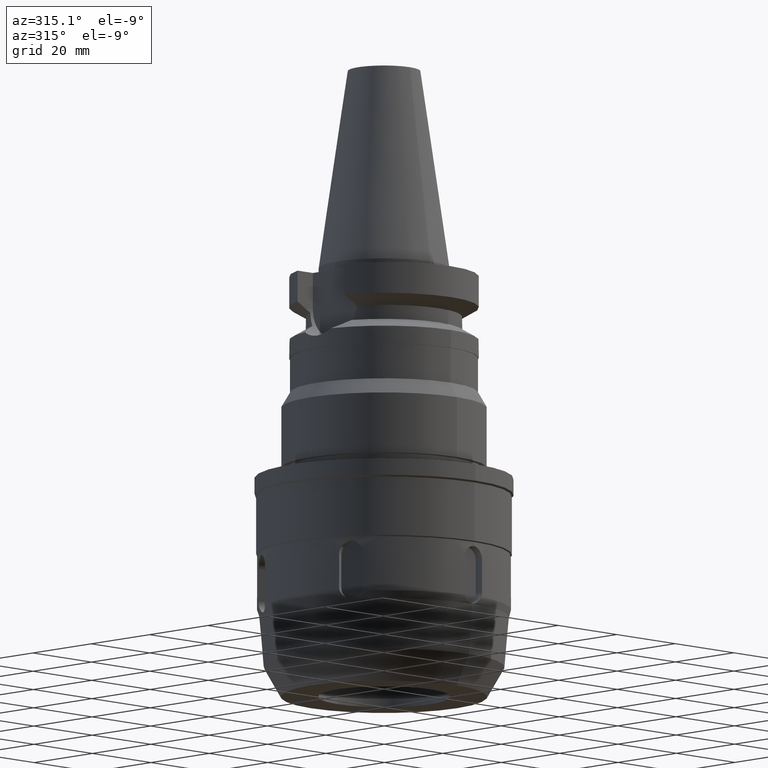
[diagram: clean part render]
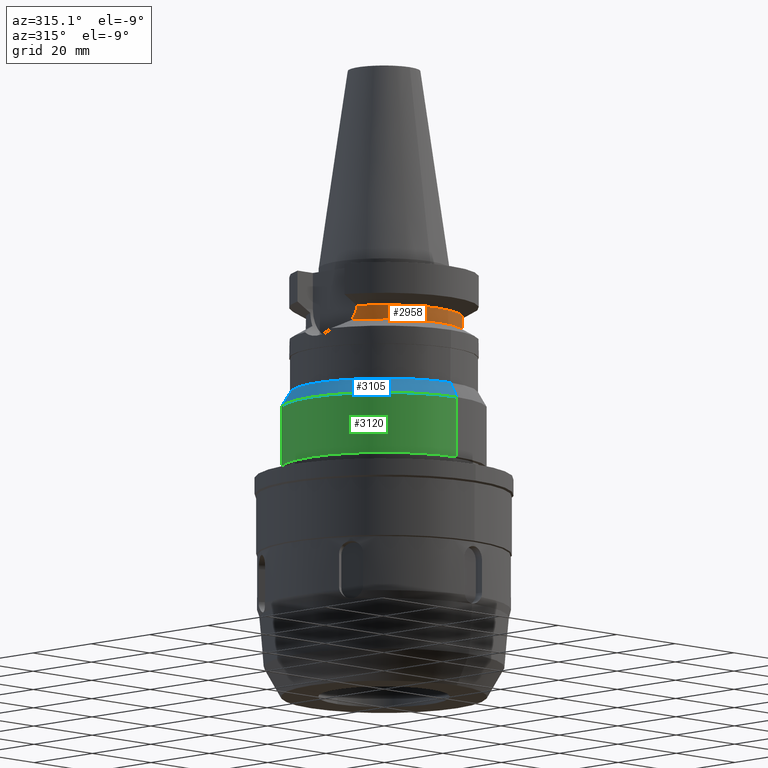
[diagram: same view with three faces highlighted in distinct colors, each labeled with its STEP entity id]
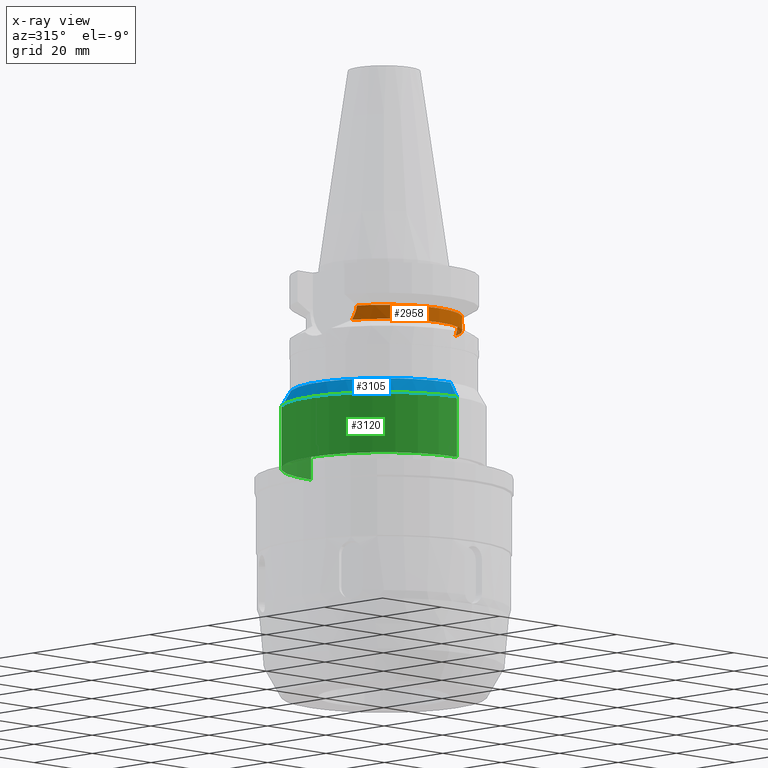
[diagram: x-ray of the same camera — body ghosted, the three highlighted faces saturated]
A machine part, auxiliary view with three faces highlighted in distinct colors.
The next image is the same camera in x-ray (body ghosted, the three faces saturated) — at least one of them is partly hidden behind the body in this view.
Their STEP definitions:

[orange] entity #2958 — the highlighted cylindrical surface (partial cylindrical patch) has radius 19 mm, axis along (0, 0, -1).
#243=CARTESIAN_POINT('',(0.E0,1.093341284897E-14,-1.187660944647E1));
#244=DIRECTION('',(0.E0,0.E0,-1.E0));
#245=DIRECTION('',(9.071218755694E-1,-4.208680349747E-1,0.E0));
#246=AXIS2_PLACEMENT_3D('',#243,#244,#245);
#251=CARTESIAN_POINT('',(0.E0,1.093341284897E-14,-1.187660944647E1));
#252=DIRECTION('',(0.E0,0.E0,-1.E0));
#253=DIRECTION('',(0.E0,-1.E0,0.E0));
#254=AXIS2_PLACEMENT_3D('',#251,#252,#253);
#259=CARTESIAN_POINT('',(-1.723531622871E1,-7.996491146968E0,
-1.187660607766E1));
#435=CARTESIAN_POINT('',(-1.775736593456E1,-6.758398853744E0,
-1.532339055353E1));
#440=CARTESIAN_POINT('',(0.E0,1.022848384030E-14,-1.532339055353E1));
#441=DIRECTION('',(0.E0,0.E0,1.E0));
#442=DIRECTION('',(-9.345982070819E-1,-3.557052028286E-1,0.E0));
#443=AXIS2_PLACEMENT_3D('',#440,#441,#442);
#448=CARTESIAN_POINT('',(0.E0,1.022848384030E-14,-1.532339055353E1));
#449=DIRECTION('',(0.E0,0.E0,1.E0));
#450=DIRECTION('',(0.E0,-1.E0,0.E0));
#451=AXIS2_PLACEMENT_3D('',#448,#449,#450);
#456=CARTESIAN_POINT('',(1.775736593456E1,-6.758398853744E0,-1.532339055353E1));
#482=CARTESIAN_POINT('',(-1.775736593456E1,-6.758398853744E0,
-1.532339055353E1));
#483=CARTESIAN_POINT('',(-1.766906836173E1,-6.990396453429E0,
-1.496487413644E1));
#484=CARTESIAN_POINT('',(-1.750811847336E1,-7.386671879896E0,
-1.422936406736E1));
#485=CARTESIAN_POINT('',(-1.732657549397E1,-7.799288209105E0,
-1.306384797532E1));
#486=CARTESIAN_POINT('',(-1.725677825876E1,-7.950232758741E0,
-1.227581304913E1));
#487=CARTESIAN_POINT('',(-1.723531622871E1,-7.996491146968E0,
-1.187660607766E1));
#492=CARTESIAN_POINT('',(1.723531135315E1,-7.996501749113E0,-1.187660739353E1));
#493=CARTESIAN_POINT('',(1.725676925407E1,-7.950252260646E0,-1.227573583739E1));
#494=CARTESIAN_POINT('',(1.732652358915E1,-7.799414138386E0,-1.306369664010E1));
#495=CARTESIAN_POINT('',(1.750847798992E1,-7.385835046504E0,-1.423136151466E1));
#496=CARTESIAN_POINT('',(1.766925811754E1,-6.989897879221E0,-1.496564460579E1));
#497=CARTESIAN_POINT('',(1.775736593456E1,-6.758398853744E0,-1.532339055353E1));
#2510=VERTEX_POINT('',#456);
#2511=VERTEX_POINT('',#492);
#2524=VERTEX_POINT('',#435);
#2525=CARTESIAN_POINT('',(0.E0,-1.9E1,-1.532339055353E1));
#2526=VERTEX_POINT('',#2525);
#2541=VERTEX_POINT('',#259);
#2542=CARTESIAN_POINT('',(0.E0,-1.9E1,-1.187660944647E1));
#2543=VERTEX_POINT('',#2542);
#2944=CARTESIAN_POINT('',(0.E0,1.911306259429E-14,5.607E1));
#2945=DIRECTION('',(0.E0,0.E0,-1.E0));
#2946=DIRECTION('',(0.E0,-1.E0,0.E0));
#2947=AXIS2_PLACEMENT_3D('',#2944,#2945,#2946);
#2948=CYLINDRICAL_SURFACE('',#2947,1.9E1);
#2949=ORIENTED_EDGE('',*,*,#2920,.T.);
#2950=ORIENTED_EDGE('',*,*,#2780,.F.);
#2951=ORIENTED_EDGE('',*,*,#2778,.F.);
#2953=ORIENTED_EDGE('',*,*,#2952,.T.);
#2954=ORIENTED_EDGE('',*,*,#2933,.F.);
#2955=ORIENTED_EDGE('',*,*,#2931,.F.);
#2956=EDGE_LOOP('',(#2949,#2950,#2951,#2953,#2954,#2955));
#2957=FACE_OUTER_BOUND('',#2956,.F.);
#247=CIRCLE('',#246,1.9E1);
#255=CIRCLE('',#254,1.9E1);
#444=CIRCLE('',#443,1.9E1);
#452=CIRCLE('',#451,1.9E1);
#488=B_SPLINE_CURVE_WITH_KNOTS('',3,(#482,#483,#484,#485,#486,#487),
.UNSPECIFIED.,.F.,.F.,(4,1,1,4),(0.E0,3.333333333333E-1,6.666666666667E-1,1.E0),
.UNSPECIFIED.);
#498=B_SPLINE_CURVE_WITH_KNOTS('',3,(#492,#493,#494,#495,#496,#497),
.UNSPECIFIED.,.F.,.F.,(4,1,1,4),(0.E0,3.333333333333E-1,6.666666666667E-1,1.E0),
.UNSPECIFIED.);
#2778=EDGE_CURVE('',#2511,#2543,#247,.T.);
#2780=EDGE_CURVE('',#2543,#2541,#255,.T.);
#2920=EDGE_CURVE('',#2524,#2541,#488,.T.);
#2931=EDGE_CURVE('',#2524,#2526,#444,.T.);
#2933=EDGE_CURVE('',#2526,#2510,#452,.T.);
#2952=EDGE_CURVE('',#2511,#2510,#498,.T.);
#2958=ADVANCED_FACE('',(#2957),#2948,.T.);

[blue] entity #3105 — the highlighted conical surface has half-angle 30 deg.
#661=DIRECTION('',(0.E0,5.000000000001E-1,-8.660254037844E-1));
#662=VECTOR('',#661,4.399999999999E0);
#663=CARTESIAN_POINT('',(0.E0,2.28E1,-3.05E1));
#664=LINE('',#663,#662);
#684=CARTESIAN_POINT('',(0.E0,0.E0,-3.05E1));
#685=DIRECTION('',(0.E0,0.E0,1.E0));
#686=DIRECTION('',(0.E0,1.E0,0.E0));
#687=AXIS2_PLACEMENT_3D('',#684,#685,#686);
#692=DIRECTION('',(0.E0,-5.000000000001E-1,-8.660254037844E-1));
#693=VECTOR('',#692,4.399999999999E0);
#694=CARTESIAN_POINT('',(0.E0,-2.28E1,-3.05E1));
#695=LINE('',#694,#693);
#699=CARTESIAN_POINT('',(0.E0,0.E0,-3.431051177665E1));
#700=DIRECTION('',(0.E0,0.E0,-1.E0));
#701=DIRECTION('',(0.E0,-1.E0,0.E0));
#702=AXIS2_PLACEMENT_3D('',#699,#700,#701);
#2487=CARTESIAN_POINT('',(0.E0,2.5E1,-3.431051177665E1));
#2488=VERTEX_POINT('',#2487);
#2489=CARTESIAN_POINT('',(0.E0,-2.5E1,-3.431051177665E1));
#2490=VERTEX_POINT('',#2489);
#2491=CARTESIAN_POINT('',(0.E0,2.28E1,-3.05E1));
#2492=VERTEX_POINT('',#2491);
#2493=CARTESIAN_POINT('',(0.E0,-2.28E1,-3.05E1));
#2494=VERTEX_POINT('',#2493);
#3093=CARTESIAN_POINT('',(0.E0,0.E0,-3.240525588833E1));
#3094=DIRECTION('',(0.E0,0.E0,-1.E0));
#3095=DIRECTION('',(0.E0,-1.E0,0.E0));
#3096=AXIS2_PLACEMENT_3D('',#3093,#3094,#3095);
#3097=CONICAL_SURFACE('',#3096,2.39E1,3.E1);
#3098=ORIENTED_EDGE('',*,*,#3083,.F.);
#3099=ORIENTED_EDGE('',*,*,#3060,.T.);
#3100=ORIENTED_EDGE('',*,*,#3087,.T.);
#3102=ORIENTED_EDGE('',*,*,#3101,.T.);
#3103=EDGE_LOOP('',(#3098,#3099,#3100,#3102));
#3104=FACE_OUTER_BOUND('',#3103,.F.);
#688=CIRCLE('',#687,2.28E1);
#703=CIRCLE('',#702,2.5E1);
#3060=EDGE_CURVE('',#2492,#2494,#688,.T.);
#3083=EDGE_CURVE('',#2492,#2488,#664,.T.);
#3087=EDGE_CURVE('',#2494,#2490,#695,.T.);
#3101=EDGE_CURVE('',#2490,#2488,#703,.T.);
#3105=ADVANCED_FACE('',(#3104),#3097,.T.);

[green] entity #3120 — the highlighted cylindrical surface (partial cylindrical patch) has radius 25 mm, axis along (0, 0, -1).
#699=CARTESIAN_POINT('',(0.E0,0.E0,-3.431051177665E1));
#700=DIRECTION('',(0.E0,0.E0,-1.E0));
#701=DIRECTION('',(0.E0,-1.E0,0.E0));
#702=AXIS2_PLACEMENT_3D('',#699,#700,#701);
#707=DIRECTION('',(0.E0,-8.513266057493E-14,-1.E0));
#708=VECTOR('',#707,1.468948822335E1);
#709=CARTESIAN_POINT('',(0.E0,-2.5E1,-3.431051177665E1));
#710=LINE('',#709,#708);
#714=DIRECTION('',(0.E0,8.513266057493E-14,-1.E0));
#715=VECTOR('',#714,1.468948822335E1);
#716=CARTESIAN_POINT('',(0.E0,2.5E1,-3.431051177665E1));
#717=LINE('',#716,#715);
#729=CARTESIAN_POINT('',(0.E0,1.911306259429E-14,-4.9E1));
#730=DIRECTION('',(0.E0,0.E0,1.E0));
#731=DIRECTION('',(0.E0,1.E0,0.E0));
#732=AXIS2_PLACEMENT_3D('',#729,#730,#731);
#2483=CARTESIAN_POINT('',(0.E0,-2.5E1,-4.9E1));
#2484=CARTESIAN_POINT('',(0.E0,2.5E1,-4.9E1));
#2485=VERTEX_POINT('',#2483);
#2486=VERTEX_POINT('',#2484);
#2487=CARTESIAN_POINT('',(0.E0,2.5E1,-3.431051177665E1));
#2488=VERTEX_POINT('',#2487);
#2489=CARTESIAN_POINT('',(0.E0,-2.5E1,-3.431051177665E1));
#2490=VERTEX_POINT('',#2489);
#3106=CARTESIAN_POINT('',(0.E0,1.911306259429E-14,5.607E1));
#3107=DIRECTION('',(0.E0,0.E0,-1.E0));
#3108=DIRECTION('',(0.E0,-1.E0,0.E0));
#3109=AXIS2_PLACEMENT_3D('',#3106,#3107,#3108);
#3110=CYLINDRICAL_SURFACE('',#3109,2.5E1);
#3112=ORIENTED_EDGE('',*,*,#3111,.F.);
#3113=ORIENTED_EDGE('',*,*,#3101,.F.);
#3115=ORIENTED_EDGE('',*,*,#3114,.T.);
#3117=ORIENTED_EDGE('',*,*,#3116,.F.);
#3118=EDGE_LOOP('',(#3112,#3113,#3115,#3117));
#3119=FACE_OUTER_BOUND('',#3118,.F.);
#703=CIRCLE('',#702,2.5E1);
#733=CIRCLE('',#732,2.5E1);
#3101=EDGE_CURVE('',#2490,#2488,#703,.T.);
#3111=EDGE_CURVE('',#2488,#2486,#717,.T.);
#3114=EDGE_CURVE('',#2490,#2485,#710,.T.);
#3116=EDGE_CURVE('',#2486,#2485,#733,.T.);
#3120=ADVANCED_FACE('',(#3119),#3110,.T.);